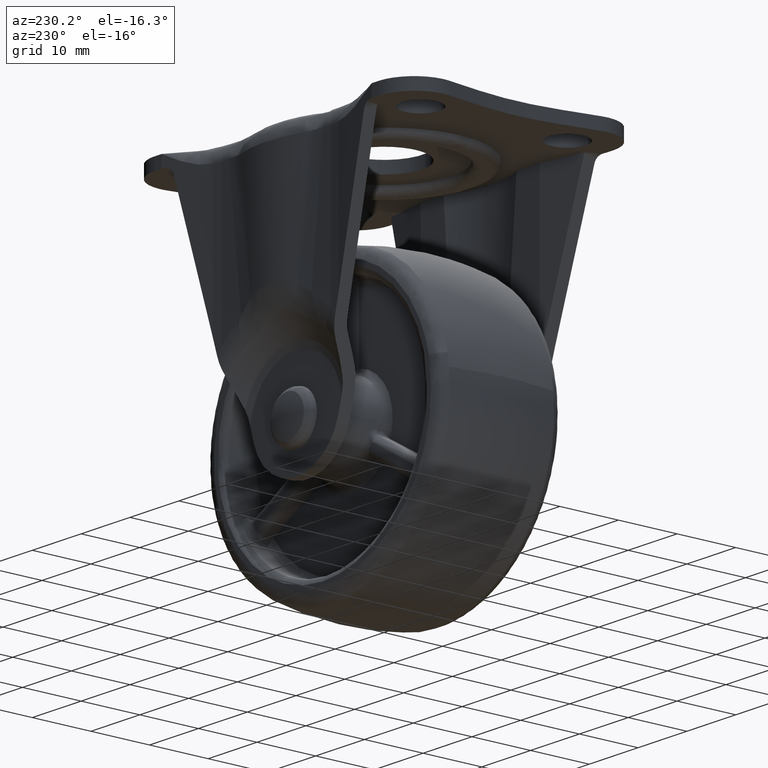
[diagram: clean part render]
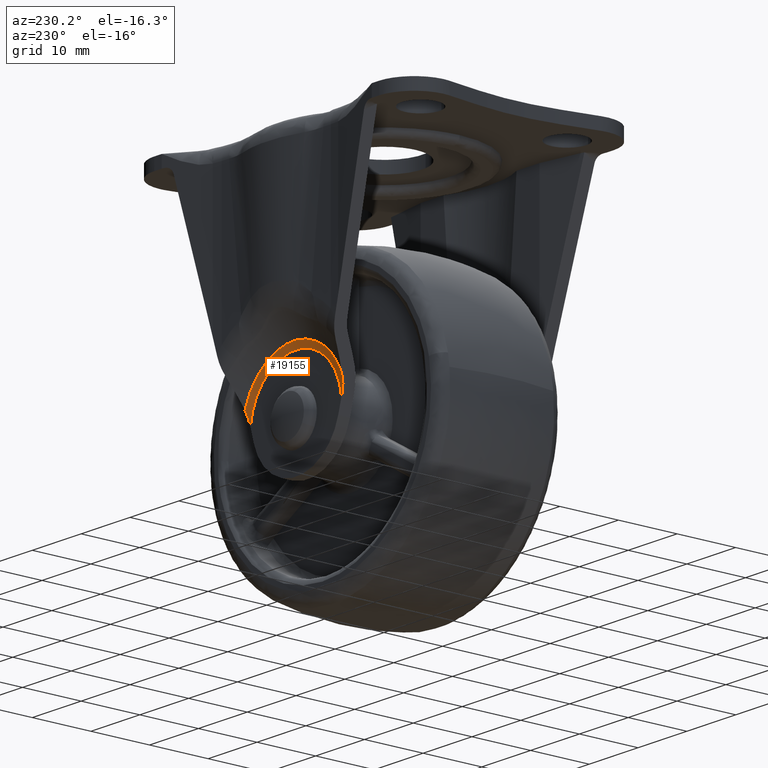
[diagram: same view with one face highlighted and labeled with its STEP entity id]
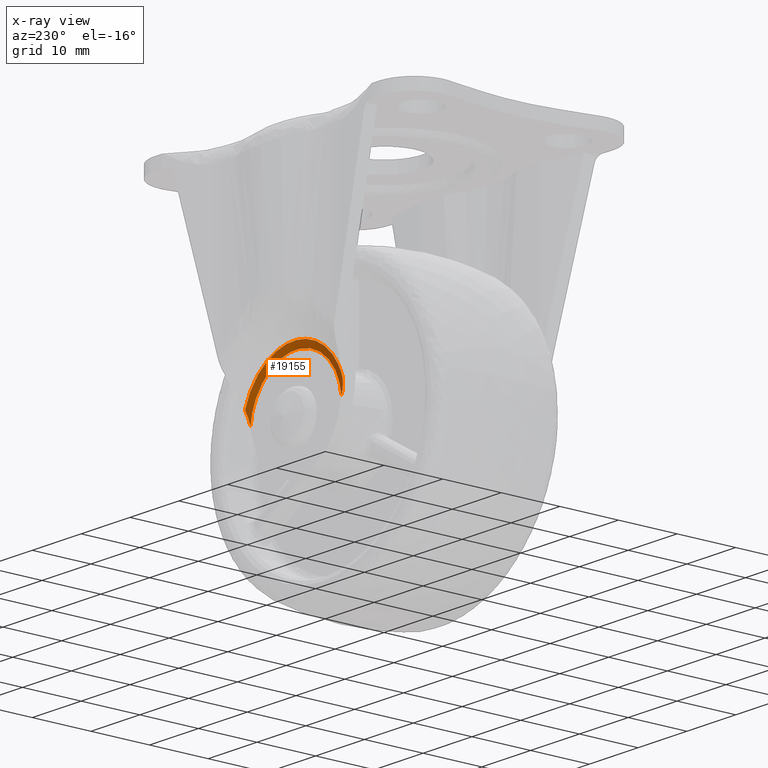
[diagram: x-ray of the same camera — body ghosted, the highlighted face saturated]
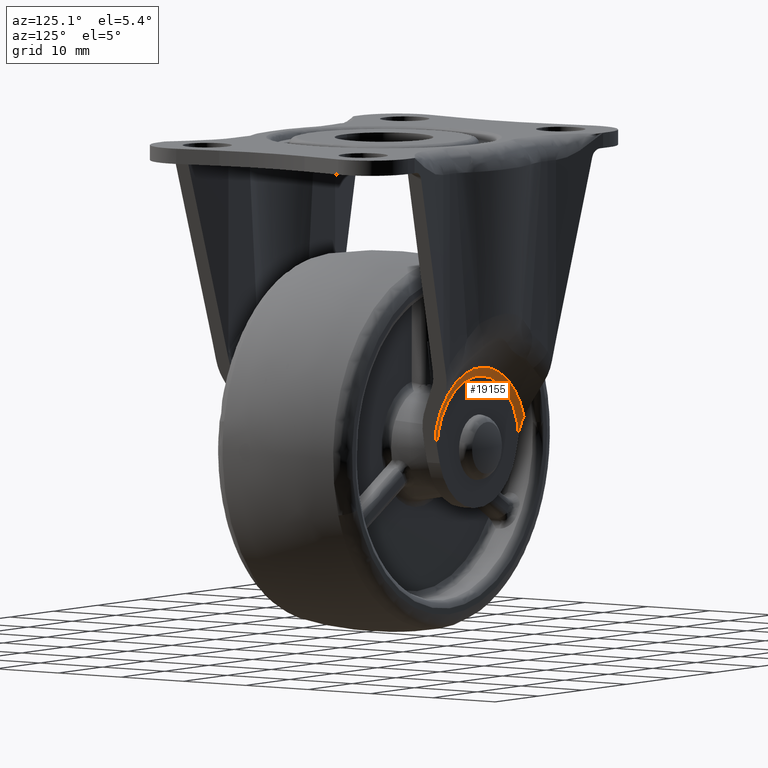
[diagram: same view with one face highlighted and labeled with its STEP entity id]
A machine part, auxiliary view. The second image highlights one B-rep face of the part: STEP entity #19155.
The next image is the same camera in x-ray: the body ghosted, the highlighted face saturated — about 0% of this face is hidden behind the body in this view.
A second angle (auxiliary view) of the same face is appended — the face is thin or edge-on in the first view.
In plain terms, the highlighted face is a freeform B-spline surface patch.
Its self-contained STEP definition (entity closure, byte-faithful):
#13262=CARTESIAN_POINT('',(-6.701465037248011,15.018826592510671,6.540104089342503));
#13263=VERTEX_POINT('',#13262);
#13269=CARTESIAN_POINT('',(9.321350951049009,15.018826592510949,0.891634225653688));
#13270=VERTEX_POINT('',#13269);
#13271=CARTESIAN_POINT('',(-6.701465037248011,15.018826592510665,6.540104089342503));
#13272=CARTESIAN_POINT('',(-3.945665875266858,15.018826592510395,9.363895802893826));
#13273=CARTESIAN_POINT('',(-0.000006404173648,15.018826592510401,9.363898501416070));
#13274=CARTESIAN_POINT('',(8.510935590998491,15.018826592510393,9.363904322234230));
#13275=CARTESIAN_POINT('',(9.321350951049009,15.018826592510949,0.891634225653688));
#13283=(BOUNDED_CURVE()B_SPLINE_CURVE(2,(#13271,#13272,#13273,#13274,#13275),.UNSPECIFIED.,.F.,.U.)B_SPLINE_CURVE_WITH_KNOTS((3,2,3),(0.230634896925099,0.500000000000000,1.0),.UNSPECIFIED.)CURVE()GEOMETRIC_REPRESENTATION_ITEM()RATIONAL_B_SPLINE_CURVE((0.870783327115900,0.859933736603980,1.0,0.740006664194595,1.0))REPRESENTATION_ITEM(''));
#13284=EDGE_CURVE('',#13263,#13270,#13283,.T.);
#13401=CARTESIAN_POINT('',(-9.321352170658470,15.018826592510949,0.891621475504158));
#13402=VERTEX_POINT('',#13401);
#13410=CARTESIAN_POINT('',(-9.321352170658470,15.018826592510949,0.891621475504158));
#13411=CARTESIAN_POINT('',(-9.007031141005200,15.018826592510399,4.177653824946184));
#13412=CARTESIAN_POINT('',(-6.701465037248011,15.018826592510669,6.540104089342503));
#13420=(BOUNDED_CURVE()B_SPLINE_CURVE(2,(#13410,#13411,#13412),.UNSPECIFIED.,.F.,.U.)B_SPLINE_CURVE_WITH_KNOTS((3,3),(0.0,0.230634896925099),.UNSPECIFIED.)CURVE()GEOMETRIC_REPRESENTATION_ITEM()RATIONAL_B_SPLINE_CURVE((1.0,0.880072927590616,0.870783327115900))REPRESENTATION_ITEM(''));
#13421=EDGE_CURVE('',#13402,#13263,#13420,.T.);
#19083=CARTESIAN_POINT('',(10.558950511223751,15.423839065605840,-0.422802934070471));
#19084=CARTESIAN_POINT('',(10.999022197524001,15.423839065605838,10.567412087144650));
#19085=CARTESIAN_POINT('',(0.0,15.423839065605833,10.567412087144655));
#19086=CARTESIAN_POINT('',(-10.999037282364549,15.423839065605833,10.567412087144650));
#19087=CARTESIAN_POINT('',(-10.558949931816574,15.423839065605833,-0.422817403759212));
#19088=CARTESIAN_POINT('',(9.998530748779711,14.999523678165572,-0.400362529636285));
#19089=CARTESIAN_POINT('',(10.415245485955845,14.999523678165572,10.006543223782632));
#19090=CARTESIAN_POINT('',(0.0,14.999523678165573,10.006543223782637));
#19091=CARTESIAN_POINT('',(-10.415259770163535,14.999523678165566,10.006543223782634));
#19092=CARTESIAN_POINT('',(-9.998530200124762,14.999523678165577,-0.400376231341549));
#19093=CARTESIAN_POINT('',(9.296091058454479,15.019642644009698,-0.372235343912536));
#19094=CARTESIAN_POINT('',(9.683529797157368,15.019642644009695,9.303540622705691));
#19095=CARTESIAN_POINT('',(0.0,15.019642644009700,9.303540622705693));
#19096=CARTESIAN_POINT('',(-9.683543077838168,15.019642644009691,9.303540622705691));
#19097=CARTESIAN_POINT('',(-9.296090548344896,15.019642644009698,-0.372248083014210));
#19105=(BOUNDED_SURFACE()B_SPLINE_SURFACE(2,2,((#19083,#19088,#19093),(#19084,#19089,#19094),(#19085,#19090,#19095),(#19086,#19091,#19096),(#19087,#19092,#19097)),.UNSPECIFIED.,.F.,.F.,.U.)B_SPLINE_SURFACE_WITH_KNOTS((3,2,3),(3,3),(0.0,18.005981721019278,36.011980437484482),(0.0,1.365595270261010),.UNSPECIFIED.)GEOMETRIC_REPRESENTATION_ITEM()RATIONAL_B_SPLINE_SURFACE(((0.927408910608718,0.875584691063024,0.928876114281343),(0.646812858733269,0.610668531012750,0.647836146509544),(0.939830090706956,0.887311767452461,0.941316945259413),(0.646812582160817,0.610668269895348,0.647835869499541),(0.927409440305982,0.875585191160457,0.928876644816612)))REPRESENTATION_ITEM('')SURFACE());
#19106=CARTESIAN_POINT('',(9.995044660332571,15.388097944067001,3.277372577724740));
#19107=VERTEX_POINT('',#19106);
#19108=CARTESIAN_POINT('',(9.321350951049009,15.018826592510949,0.891634225653688));
#19109=CARTESIAN_POINT('',(9.378732909884272,15.018946806629060,1.094839833837529));
#19110=CARTESIAN_POINT('',(9.435937756936619,15.023442286358410,1.297418239487093));
#19111=CARTESIAN_POINT('',(9.549817798477893,15.045517470891051,1.700699402568428));
#19112=CARTESIAN_POINT('',(9.606493879660309,15.063075271492449,1.901405300009240));
#19113=CARTESIAN_POINT('',(9.719110443694706,15.116362661163050,2.300212134915040));
#19114=CARTESIAN_POINT('',(9.775053213079293,15.152035765075730,2.498321169633211));
#19115=CARTESIAN_POINT('',(9.885922729441646,15.248481192803061,2.890941218798477));
#19116=CARTESIAN_POINT('',(9.940856397029062,15.309082553952321,3.085476741065100));
#19117=CARTESIAN_POINT('',(9.995044660332571,15.388097944067001,3.277372577724740));
#19118=B_SPLINE_CURVE_WITH_KNOTS('',3,(#19108,#19109,#19110,#19111,#19112,#19113,#19114,#19115,#19116,#19117),.UNSPECIFIED.,.F.,.U.,(4,2,2,2,4),(0.0,0.250000000000000,0.500000000000000,0.750000000000000,1.0),.UNSPECIFIED.);
#19119=EDGE_CURVE('',#13270,#19107,#19118,.T.);
#19120=ORIENTED_EDGE('',*,*,#19119,.F.);
#19121=ORIENTED_EDGE('',*,*,#13284,.F.);
#19122=ORIENTED_EDGE('',*,*,#13421,.F.);
#19123=CARTESIAN_POINT('',(-9.995047222446761,15.388097944067750,3.277364764005640));
#19124=VERTEX_POINT('',#19123);
#19125=CARTESIAN_POINT('',(-9.995047222446761,15.388097944067750,3.277364764005640));
#19126=CARTESIAN_POINT('',(-9.941489007584790,15.310001355658720,3.087700091076753));
#19127=CARTESIAN_POINT('',(-9.886908209215745,15.249516047680389,2.894414162904398));
#19128=CARTESIAN_POINT('',(-9.776328586599751,15.152967154960290,2.502820678878002));
#19129=CARTESIAN_POINT('',(-9.720321566870675,15.117044715594950,2.304484100521170));
#19130=CARTESIAN_POINT('',(-9.607255026252828,15.063326369269999,1.904083741757847));
#19131=CARTESIAN_POINT('',(-9.550096844135657,15.045577162503530,1.701670574246796));
#19132=CARTESIAN_POINT('',(-9.435815401952311,15.023412308124490,1.296967908010115));
#19133=CARTESIAN_POINT('',(-9.378606256787572,15.018946538318470,1.094374266042255));
#19134=CARTESIAN_POINT('',(-9.321352170658470,15.018826592510949,0.891621475504158));
#19135=B_SPLINE_CURVE_WITH_KNOTS('',3,(#19125,#19126,#19127,#19128,#19129,#19130,#19131,#19132,#19133,#19134),.UNSPECIFIED.,.F.,.U.,(4,2,2,2,4),(0.0,0.250000000000000,0.500000000000000,0.750000000000000,1.0),.UNSPECIFIED.);
#19136=EDGE_CURVE('',#19124,#13402,#19135,.T.);
#19137=ORIENTED_EDGE('',*,*,#19136,.F.);
#19138=CARTESIAN_POINT('',(9.995044660332571,15.388097944067001,3.277372577724740));
#19139=CARTESIAN_POINT('',(7.620629258516670,15.388097944067800,10.518657302154493));
#19140=CARTESIAN_POINT('',(-0.000004111527549,15.388097944067800,10.518654323404260));
#19141=CARTESIAN_POINT('',(-7.620637481571766,15.388097944067800,10.518651344654023));
#19142=CARTESIAN_POINT('',(-9.995047222446761,15.388097944067750,3.277364764005640));
#19150=(BOUNDED_CURVE()B_SPLINE_CURVE(2,(#19138,#19139,#19140,#19141,#19142),.UNSPECIFIED.,.F.,.U.)B_SPLINE_CURVE_WITH_KNOTS((3,2,3),(0.0,0.500000000000000,1.0),.UNSPECIFIED.)CURVE()GEOMETRIC_REPRESENTATION_ITEM()RATIONAL_B_SPLINE_CURVE((1.0,0.809807631961463,1.0,0.809807631961463,1.0))REPRESENTATION_ITEM(''));
#19151=EDGE_CURVE('',#19107,#19124,#19150,.T.);
#19152=ORIENTED_EDGE('',*,*,#19151,.F.);
#19153=EDGE_LOOP('',(#19120,#19121,#19122,#19137,#19152));
#19154=FACE_OUTER_BOUND('',#19153,.T.);
#19155=ADVANCED_FACE('',(#19154),#19105,.F.);